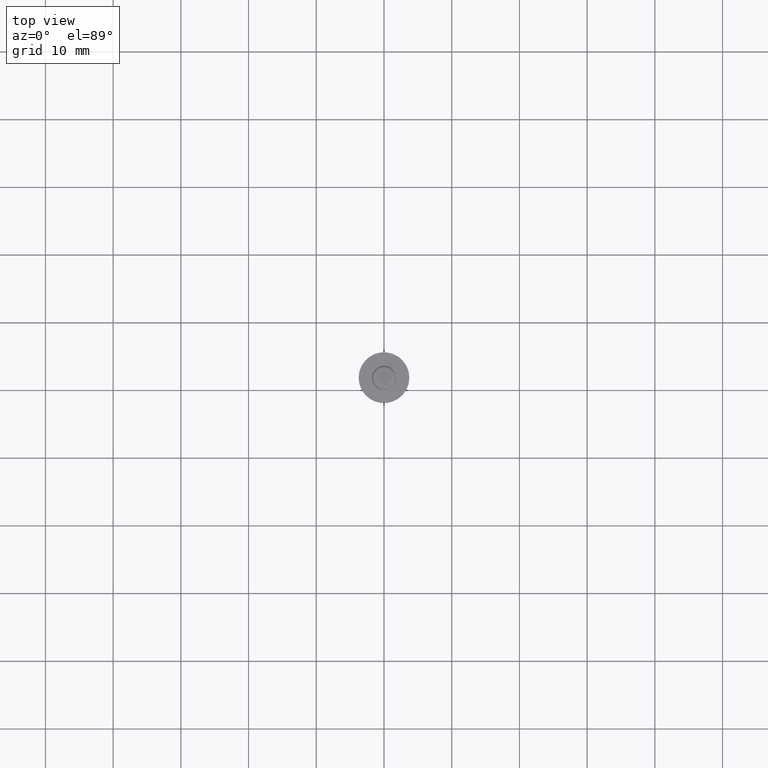
[diagram: clean part render]
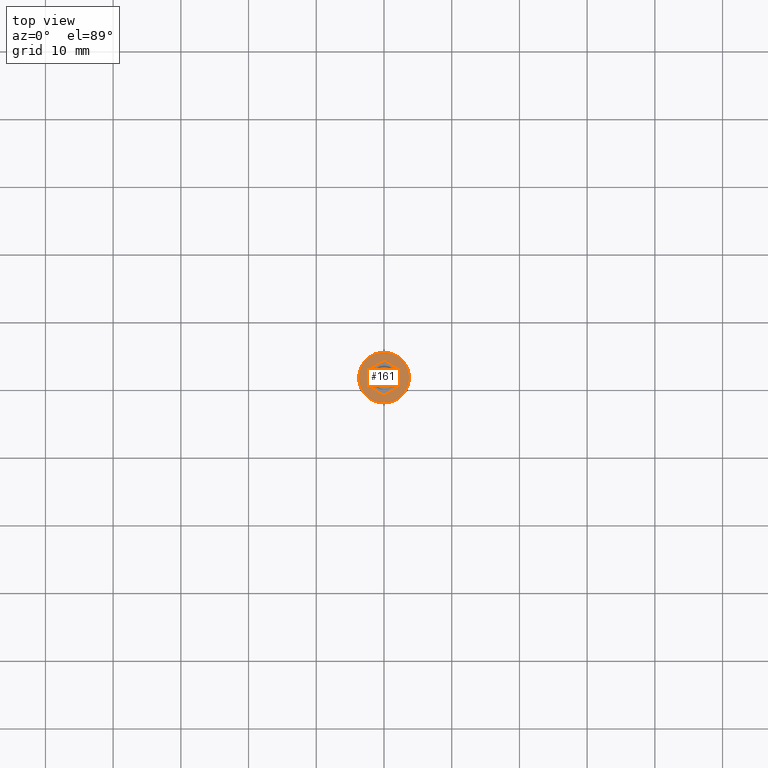
[diagram: same view with one face highlighted and labeled with its STEP entity id]
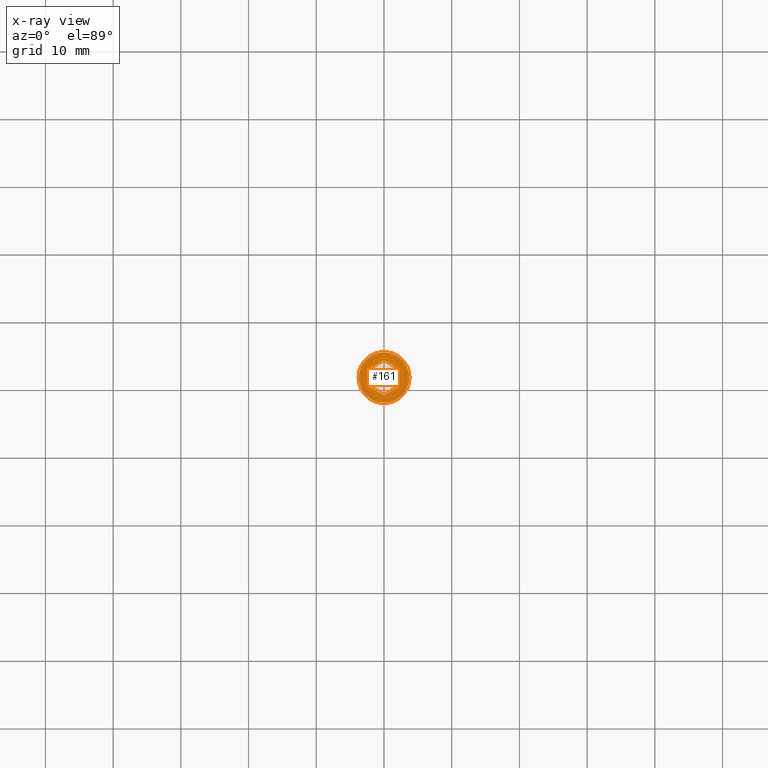
[diagram: x-ray of the same camera — body ghosted, the highlighted face saturated]
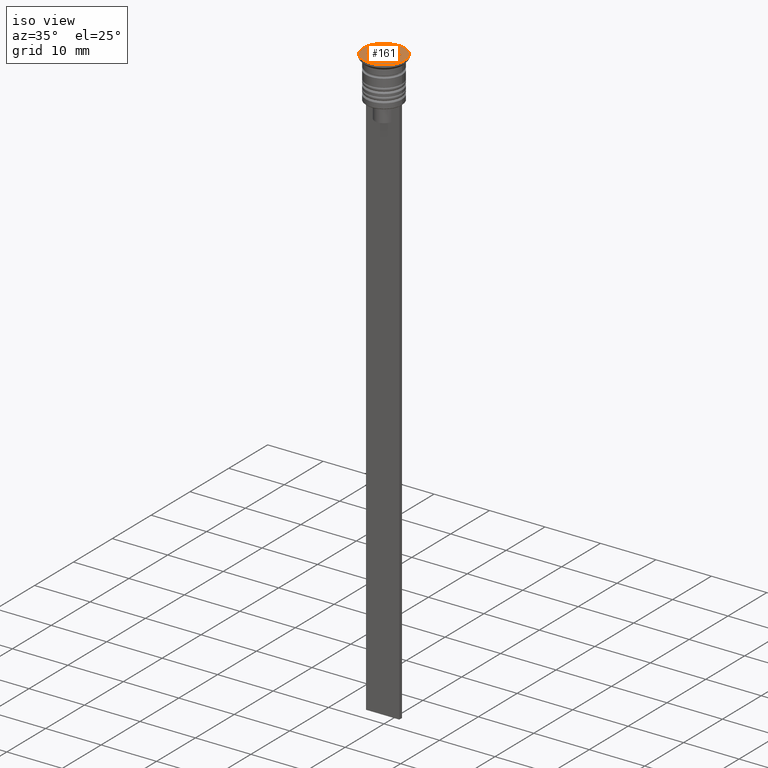
[diagram: same view with one face highlighted and labeled with its STEP entity id]
A machine part, top view. The second image highlights one B-rep face of the part: STEP entity #161.
The next image is the same camera in x-ray: the body ghosted, the highlighted face saturated — about 0% of this face is hidden behind the body in this view.
A second angle (iso view) of the same face is appended — the face is thin or edge-on in the first view.
In plain terms, the highlighted planar face has unit normal (0, -0, 1).
Its self-contained STEP definition (entity closure, byte-faithful):
#10 = CARTESIAN_POINT ( 'NONE',  ( -2.250000000000000888, 1.299038105676658228, 0.000000000000000000 ) ) ;
#27 = VERTEX_POINT ( 'NONE', #505 ) ;
#49 = FACE_BOUND ( 'NONE', #653, .T. ) ;
#93 = DIRECTION ( 'NONE',  ( -0.000000000000000000, -0.000000000000000000, 1.000000000000000000 ) ) ;
#108 = CARTESIAN_POINT ( 'NONE',  ( -2.250000000000000888, 1.299038105676658228, 0.000000000000000000 ) ) ;
#161 = ADVANCED_FACE ( 'NONE', ( #49, #1385 ), #1397, .T. ) ;
#182 = DIRECTION ( 'NONE',  ( 0.8660254037844387076, -0.4999999999999998335, 0.000000000000000000 ) ) ;
#212 = EDGE_CURVE ( 'NONE', #27, #1114, #1819, .T. ) ;
#259 = VERTEX_POINT ( 'NONE', #861 ) ;
#270 = DIRECTION ( 'NONE',  ( 0.000000000000000000, -1.000000000000000000, 0.000000000000000000 ) ) ;
#284 = LINE ( 'NONE', #1634, #1795 ) ;
#286 = AXIS2_PLACEMENT_3D ( 'NONE', #1256, #93, #1746 ) ;
#333 = EDGE_LOOP ( 'NONE', ( #1905, #1950 ) ) ;
#365 = ORIENTED_EDGE ( 'NONE', *, *, #212, .F. ) ;
#399 = DIRECTION ( 'NONE',  ( -0.8660254037844388186, 0.4999999999999997224, 0.000000000000000000 ) ) ;
#456 = EDGE_CURVE ( 'NONE', #1114, #2004, #1941, .T. ) ;
#468 = ORIENTED_EDGE ( 'NONE', *, *, #456, .F. ) ;
#505 = CARTESIAN_POINT ( 'NONE',  ( 0.000000000000000000, 2.598076211353316012, 0.000000000000000000 ) ) ;
#647 = DIRECTION ( 'NONE',  ( 1.669238443041287429E-16, 1.000000000000000000, 0.000000000000000000 ) ) ;
#653 = EDGE_LOOP ( 'NONE', ( #1418, #921, #1583, #2061, #468, #365 ) ) ;
#665 = CIRCLE ( 'NONE', #286, 3.750000000000000000 ) ;
#782 = AXIS2_PLACEMENT_3D ( 'NONE', #1776, #1409, #938 ) ;
#811 = EDGE_CURVE ( 'NONE', #1595, #1893, #665, .T. ) ;
#816 = DIRECTION ( 'NONE',  ( -0.8660254037844387076, -0.4999999999999999445, 0.000000000000000000 ) ) ;
#837 = DIRECTION ( 'NONE',  ( 0.000000000000000000, -0.000000000000000000, 1.000000000000000000 ) ) ;
#861 = CARTESIAN_POINT ( 'NONE',  ( 2.224527942369933556E-16, -2.598076211353316456, 0.000000000000000000 ) ) ;
#867 = EDGE_CURVE ( 'NONE', #1893, #1595, #2054, .T. ) ;
#897 = VERTEX_POINT ( 'NONE', #1276 ) ;
#921 = ORIENTED_EDGE ( 'NONE', *, *, #1768, .F. ) ;
#938 = DIRECTION ( 'NONE',  ( 1.000000000000000000, 0.000000000000000000, 0.000000000000000000 ) ) ;
#1017 = CARTESIAN_POINT ( 'NONE',  ( 0.000000000000000000, 0.000000000000000000, 0.000000000000000000 ) ) ;
#1031 = VECTOR ( 'NONE', #182, 1000.000000000000000 ) ;
#1114 = VERTEX_POINT ( 'NONE', #10 ) ;
#1133 = EDGE_CURVE ( 'NONE', #259, #897, #284, .T. ) ;
#1141 = LINE ( 'NONE', #1829, #1519 ) ;
#1235 = VECTOR ( 'NONE', #399, 1000.000000000000000 ) ;
#1256 = CARTESIAN_POINT ( 'NONE',  ( 0.000000000000000000, 0.000000000000000000, 0.000000000000000000 ) ) ;
#1267 = AXIS2_PLACEMENT_3D ( 'NONE', #1017, #837, #1856 ) ;
#1272 = EDGE_CURVE ( 'NONE', #1584, #27, #1918, .T. ) ;
#1276 = CARTESIAN_POINT ( 'NONE',  ( 2.250000000000000000, -1.299038105676658228, 0.000000000000000000 ) ) ;
#1332 = VECTOR ( 'NONE', #270, 1000.000000000000000 ) ;
#1385 = FACE_OUTER_BOUND ( 'NONE', #333, .T. ) ;
#1395 = LINE ( 'NONE', #1689, #1031 ) ;
#1397 = PLANE ( 'NONE',  #1267 ) ;
#1409 = DIRECTION ( 'NONE',  ( -0.000000000000000000, -0.000000000000000000, 1.000000000000000000 ) ) ;
#1418 = ORIENTED_EDGE ( 'NONE', *, *, #1272, .F. ) ;
#1422 = CARTESIAN_POINT ( 'NONE',  ( -3.750000000000000000, 4.592425496802573972E-16, 0.000000000000000000 ) ) ;
#1519 = VECTOR ( 'NONE', #647, 1000.000000000000000 ) ;
#1526 = CARTESIAN_POINT ( 'NONE',  ( 0.000000000000000000, 2.598076211353316456, 0.000000000000000000 ) ) ;
#1560 = DIRECTION ( 'NONE',  ( 0.8660254037844385966, 0.5000000000000001110, 0.000000000000000000 ) ) ;
#1576 = CARTESIAN_POINT ( 'NONE',  ( -2.250000000000000888, -1.299038105676658228, 0.000000000000000000 ) ) ;
#1583 = ORIENTED_EDGE ( 'NONE', *, *, #1133, .F. ) ;
#1584 = VERTEX_POINT ( 'NONE', #1886 ) ;
#1595 = VERTEX_POINT ( 'NONE', #1422 ) ;
#1634 = CARTESIAN_POINT ( 'NONE',  ( 2.224527942369933556E-16, -2.598076211353316456, 0.000000000000000000 ) ) ;
#1689 = CARTESIAN_POINT ( 'NONE',  ( -2.250000000000000888, -1.299038105676658228, 0.000000000000000000 ) ) ;
#1746 = DIRECTION ( 'NONE',  ( 1.000000000000000000, 0.000000000000000000, 0.000000000000000000 ) ) ;
#1765 = VECTOR ( 'NONE', #816, 1000.000000000000000 ) ;
#1768 = EDGE_CURVE ( 'NONE', #897, #1584, #1141, .T. ) ;
#1776 = CARTESIAN_POINT ( 'NONE',  ( 0.000000000000000000, 0.000000000000000000, 0.000000000000000000 ) ) ;
#1794 = CARTESIAN_POINT ( 'NONE',  ( 2.250000000000000444, 1.299038105676659116, 0.000000000000000000 ) ) ;
#1795 = VECTOR ( 'NONE', #1560, 1000.000000000000000 ) ;
#1819 = LINE ( 'NONE', #1526, #1765 ) ;
#1829 = CARTESIAN_POINT ( 'NONE',  ( 2.250000000000000000, -1.299038105676658228, 0.000000000000000000 ) ) ;
#1856 = DIRECTION ( 'NONE',  ( 1.000000000000000000, 0.000000000000000000, 0.000000000000000000 ) ) ;
#1886 = CARTESIAN_POINT ( 'NONE',  ( 2.250000000000000444, 1.299038105676659116, 0.000000000000000000 ) ) ;
#1893 = VERTEX_POINT ( 'NONE', #1991 ) ;
#1905 = ORIENTED_EDGE ( 'NONE', *, *, #867, .T. ) ;
#1918 = LINE ( 'NONE', #1794, #1235 ) ;
#1928 = EDGE_CURVE ( 'NONE', #2004, #259, #1395, .T. ) ;
#1941 = LINE ( 'NONE', #108, #1332 ) ;
#1950 = ORIENTED_EDGE ( 'NONE', *, *, #811, .T. ) ;
#1991 = CARTESIAN_POINT ( 'NONE',  ( 3.750000000000000000, 0.000000000000000000, 0.000000000000000000 ) ) ;
#2004 = VERTEX_POINT ( 'NONE', #1576 ) ;
#2054 = CIRCLE ( 'NONE', #782, 3.750000000000000000 ) ;
#2061 = ORIENTED_EDGE ( 'NONE', *, *, #1928, .F. ) ;